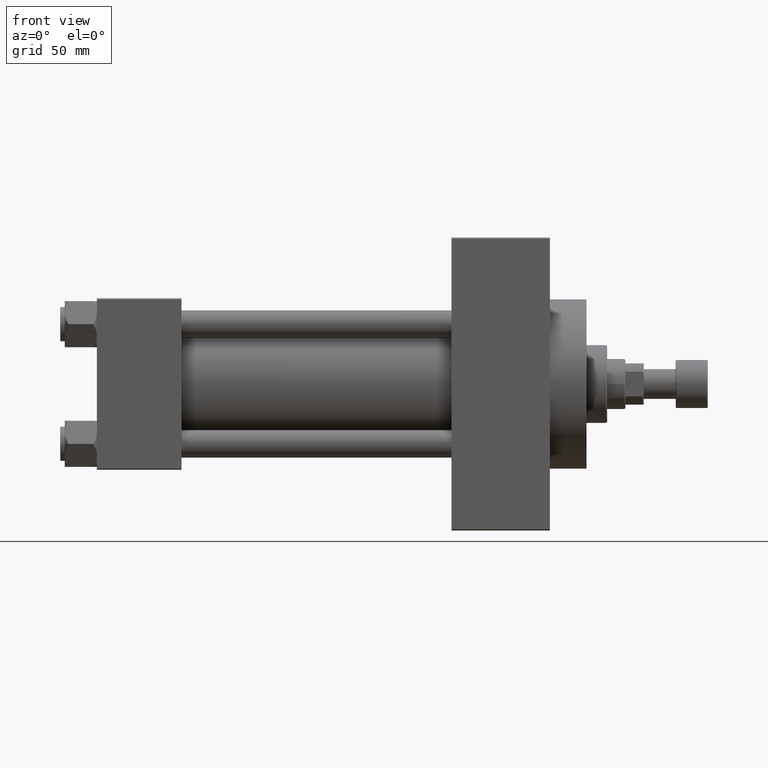
[diagram: clean part render]
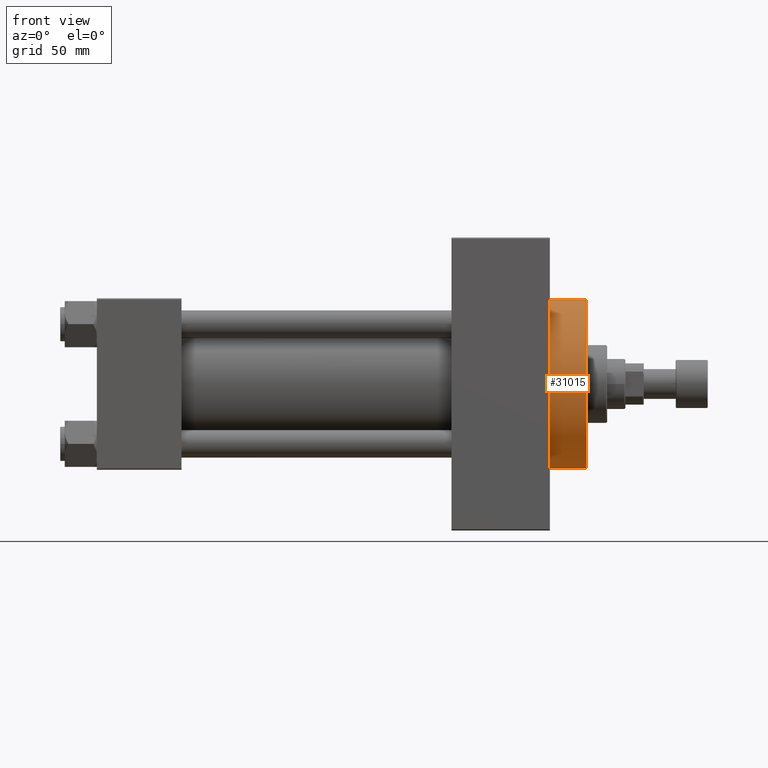
[diagram: same view with one face highlighted and labeled with its STEP entity id]
A machine part, front view. The second image highlights one B-rep face of the part: STEP entity #31015.
In plain terms, the highlighted cylindrical surface (partial cylindrical patch) has radius 37 mm, axis along (-1, -0, -0).
Its self-contained STEP definition (entity closure, byte-faithful):
#1843 = EDGE_CURVE ( 'NONE', #18352, #2230, #32143, .T. ) ;
#2099 = DIRECTION ( 'NONE',  ( -1.000000000000000000, -0.000000000000000000, -0.000000000000000000 ) ) ;
#2230 = VERTEX_POINT ( 'NONE', #29173 ) ;
#2658 = DIRECTION ( 'NONE',  ( 0.000000000000000000, 0.000000000000000000, -1.000000000000000000 ) ) ;
#3042 = EDGE_CURVE ( 'NONE', #19896, #47061, #39560, .T. ) ;
#3520 = DIRECTION ( 'NONE',  ( 1.000000000000000000, 0.000000000000000000, 0.000000000000000000 ) ) ;
#5209 = CARTESIAN_POINT ( 'NONE',  ( 214.0000000000000284, 0.000000000000000000, 37.00000000000000000 ) ) ;
#5810 = DIRECTION ( 'NONE',  ( -1.000000000000000000, -0.000000000000000000, -0.000000000000000000 ) ) ;
#6388 = VECTOR ( 'NONE', #5810, 1000.000000000000000 ) ;
#7663 = CARTESIAN_POINT ( 'NONE',  ( 214.0000000000000284, 4.531193156845206793E-15, -37.00000000000000000 ) ) ;
#12469 = VECTOR ( 'NONE', #2099, 1000.000000000000000 ) ;
#12716 = CYLINDRICAL_SURFACE ( 'NONE', #45348, 37.00000000000000000 ) ;
#14613 = CIRCLE ( 'NONE', #45489, 37.00000000000000000 ) ;
#18352 = VERTEX_POINT ( 'NONE', #7663 ) ;
#19896 = VERTEX_POINT ( 'NONE', #5209 ) ;
#20082 = ORIENTED_EDGE ( 'NONE', *, *, #33953, .F. ) ;
#20320 = CARTESIAN_POINT ( 'NONE',  ( 214.0000000000000284, 4.531193156845206793E-15, -37.00000000000000000 ) ) ;
#20707 = DIRECTION ( 'NONE',  ( 0.000000000000000000, 0.000000000000000000, 1.000000000000000000 ) ) ;
#24318 = FACE_OUTER_BOUND ( 'NONE', #47141, .T. ) ;
#25525 = DIRECTION ( 'NONE',  ( 0.000000000000000000, 0.000000000000000000, -1.000000000000000000 ) ) ;
#29147 = CARTESIAN_POINT ( 'NONE',  ( 214.0000000000000284, 0.000000000000000000, 0.000000000000000000 ) ) ;
#29173 = CARTESIAN_POINT ( 'NONE',  ( 198.0000000000000000, 4.531193156845206793E-15, -37.00000000000000000 ) ) ;
#29483 = ORIENTED_EDGE ( 'NONE', *, *, #1843, .F. ) ;
#30947 = CARTESIAN_POINT ( 'NONE',  ( 198.0000000000000000, 0.000000000000000000, 37.00000000000000000 ) ) ;
#31015 = ADVANCED_FACE ( 'NONE', ( #24318 ), #12716, .T. ) ;
#32143 = LINE ( 'NONE', #20320, #6388 ) ;
#33953 = EDGE_CURVE ( 'NONE', #19896, #18352, #14613, .T. ) ;
#34173 = ORIENTED_EDGE ( 'NONE', *, *, #42030, .T. ) ;
#35066 = CIRCLE ( 'NONE', #38931, 37.00000000000000000 ) ;
#35771 = DIRECTION ( 'NONE',  ( 1.000000000000000000, 0.000000000000000000, 0.000000000000000000 ) ) ;
#38931 = AXIS2_PLACEMENT_3D ( 'NONE', #46678, #35771, #2658 ) ;
#39065 = DIRECTION ( 'NONE',  ( -1.000000000000000000, -0.000000000000000000, -0.000000000000000000 ) ) ;
#39560 = LINE ( 'NONE', #46827, #12469 ) ;
#42030 = EDGE_CURVE ( 'NONE', #47061, #2230, #35066, .T. ) ;
#42698 = CARTESIAN_POINT ( 'NONE',  ( 214.0000000000000284, 0.000000000000000000, 0.000000000000000000 ) ) ;
#42803 = ORIENTED_EDGE ( 'NONE', *, *, #3042, .T. ) ;
#45348 = AXIS2_PLACEMENT_3D ( 'NONE', #42698, #39065, #20707 ) ;
#45489 = AXIS2_PLACEMENT_3D ( 'NONE', #29147, #3520, #25525 ) ;
#46678 = CARTESIAN_POINT ( 'NONE',  ( 198.0000000000000000, 0.000000000000000000, 0.000000000000000000 ) ) ;
#46827 = CARTESIAN_POINT ( 'NONE',  ( 214.0000000000000284, 0.000000000000000000, 37.00000000000000000 ) ) ;
#47061 = VERTEX_POINT ( 'NONE', #30947 ) ;
#47141 = EDGE_LOOP ( 'NONE', ( #29483, #20082, #42803, #34173 ) ) ;